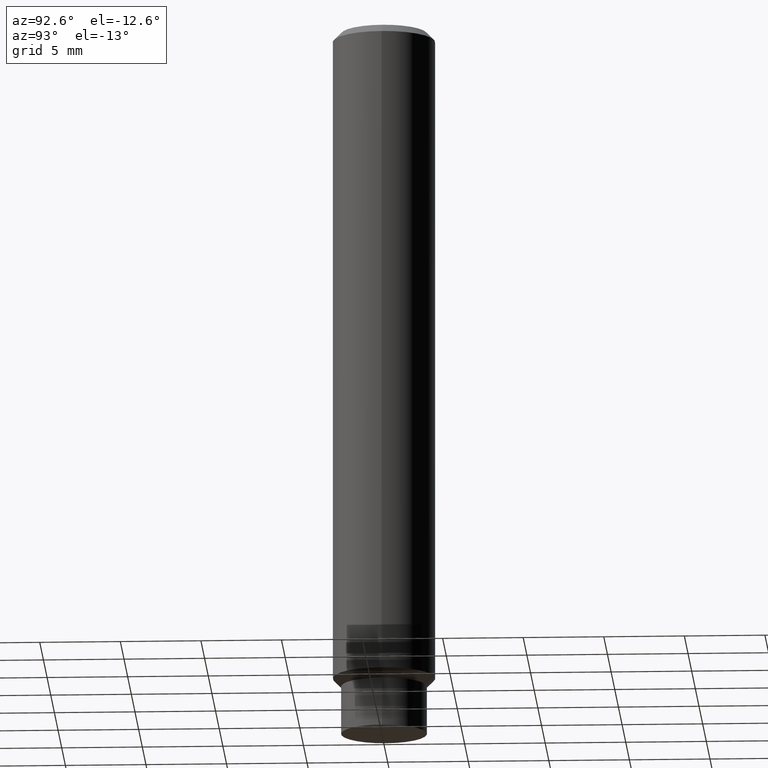
[diagram: clean part render]
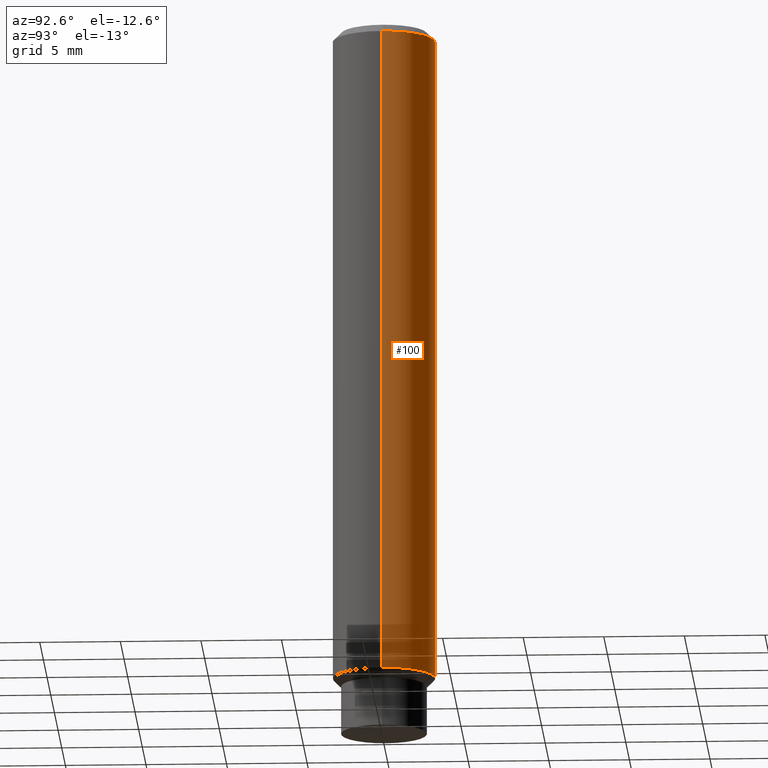
[diagram: same view with one face highlighted and labeled with its STEP entity id]
A machine part, auxiliary view. The second image highlights one B-rep face of the part: STEP entity #100.
In plain terms, the highlighted cylindrical surface (partial cylindrical patch) has radius 3.175 mm, axis along (-0, 0, 1).
Its self-contained STEP definition (entity closure, byte-faithful):
#3 = CARTESIAN_POINT ( 'NONE',  ( 4.890937612370288047E-31, -6.982962677686311331E-17, -0.02000000000000005940 ) ) ;
#5 = DIRECTION ( 'NONE',  ( -2.445468806185136877E-29, 3.491481338843145188E-15, 1.000000000000000000 ) ) ;
#7 = VECTOR ( 'NONE', #5, 39.37007874015748143 ) ;
#31 = AXIS2_PLACEMENT_3D ( 'NONE', #108, #56, #307 ) ;
#56 = DIRECTION ( 'NONE',  ( -2.445468806185136597E-29, 3.491481338843145583E-15, 1.000000000000000000 ) ) ;
#60 = EDGE_CURVE ( 'NONE', #130, #627, #324, .T. ) ;
#65 = CARTESIAN_POINT ( 'NONE',  ( 0.1250000000000000000, -6.497646771587091085E-15, -1.611000000000000210 ) ) ;
#71 = LINE ( 'NONE', #171, #133 ) ;
#92 = VERTEX_POINT ( 'NONE', #65 ) ;
#100 = ADVANCED_FACE ( 'NONE', ( #250 ), #496, .T. ) ;
#108 = CARTESIAN_POINT ( 'NONE',  ( 3.939650246764255255E-29, -5.624776436876307746E-15, -1.611000000000000210 ) ) ;
#109 = CARTESIAN_POINT ( 'NONE',  ( 0.1250000000000000000, -9.273918764983045463E-16, -0.02000000000000005940 ) ) ;
#110 = EDGE_LOOP ( 'NONE', ( #584, #126, #380, #334 ) ) ;
#120 = CARTESIAN_POINT ( 'NONE',  ( -0.1250000000000000000, 8.881784197001252323E-16, -6.148668862818632227E-30 ) ) ;
#126 = ORIENTED_EDGE ( 'NONE', *, *, #177, .T. ) ;
#130 = VERTEX_POINT ( 'NONE', #109 ) ;
#133 = VECTOR ( 'NONE', #472, 39.37007874015748143 ) ;
#171 = CARTESIAN_POINT ( 'NONE',  ( 0.1250000000000000000, -8.728703347107833388E-16, 6.095220969744919741E-30 ) ) ;
#177 = EDGE_CURVE ( 'NONE', #356, #627, #562, .T. ) ;
#250 = FACE_OUTER_BOUND ( 'NONE', #110, .T. ) ;
#307 = DIRECTION ( 'NONE',  ( 1.000000000000000000, -6.982962677686270655E-15, 0.000000000000000000 ) ) ;
#324 = CIRCLE ( 'NONE', #431, 0.1250000000000000000 ) ;
#334 = ORIENTED_EDGE ( 'NONE', *, *, #373, .F. ) ;
#352 = CARTESIAN_POINT ( 'NONE',  ( -0.1250000000000000000, 8.030407079339202378E-16, -0.02000000000000005940 ) ) ;
#356 = VERTEX_POINT ( 'NONE', #624 ) ;
#357 = DIRECTION ( 'NONE',  ( -2.445468806185136597E-29, 3.491481338843145583E-15, 1.000000000000000000 ) ) ;
#373 = EDGE_CURVE ( 'NONE', #92, #130, #71, .T. ) ;
#380 = ORIENTED_EDGE ( 'NONE', *, *, #60, .F. ) ;
#431 = AXIS2_PLACEMENT_3D ( 'NONE', #3, #586, #540 ) ;
#442 = AXIS2_PLACEMENT_3D ( 'NONE', #595, #357, #507 ) ;
#472 = DIRECTION ( 'NONE',  ( -2.445468806185136877E-29, 3.491481338843145188E-15, 1.000000000000000000 ) ) ;
#496 = CYLINDRICAL_SURFACE ( 'NONE', #442, 0.1250000000000000000 ) ;
#507 = DIRECTION ( 'NONE',  ( 1.000000000000000000, -6.982962677686266711E-15, 4.876176775795935793E-29 ) ) ;
#540 = DIRECTION ( 'NONE',  ( 1.000000000000000000, -6.982962677686266711E-15, 0.000000000000000000 ) ) ;
#562 = LINE ( 'NONE', #120, #7 ) ;
#584 = ORIENTED_EDGE ( 'NONE', *, *, #606, .T. ) ;
#586 = DIRECTION ( 'NONE',  ( -2.445468806185136597E-29, 3.491481338843145583E-15, 1.000000000000000000 ) ) ;
#589 = CIRCLE ( 'NONE', #31, 0.1250000000000000000 ) ;
#595 = CARTESIAN_POINT ( 'NONE',  ( 0.000000000000000000, 0.000000000000000000, 0.000000000000000000 ) ) ;
#606 = EDGE_CURVE ( 'NONE', #92, #356, #589, .T. ) ;
#624 = CARTESIAN_POINT ( 'NONE',  ( -0.1250000000000000000, -1.959124612126459895E-15, -1.611000000000000210 ) ) ;
#627 = VERTEX_POINT ( 'NONE', #352 ) ;